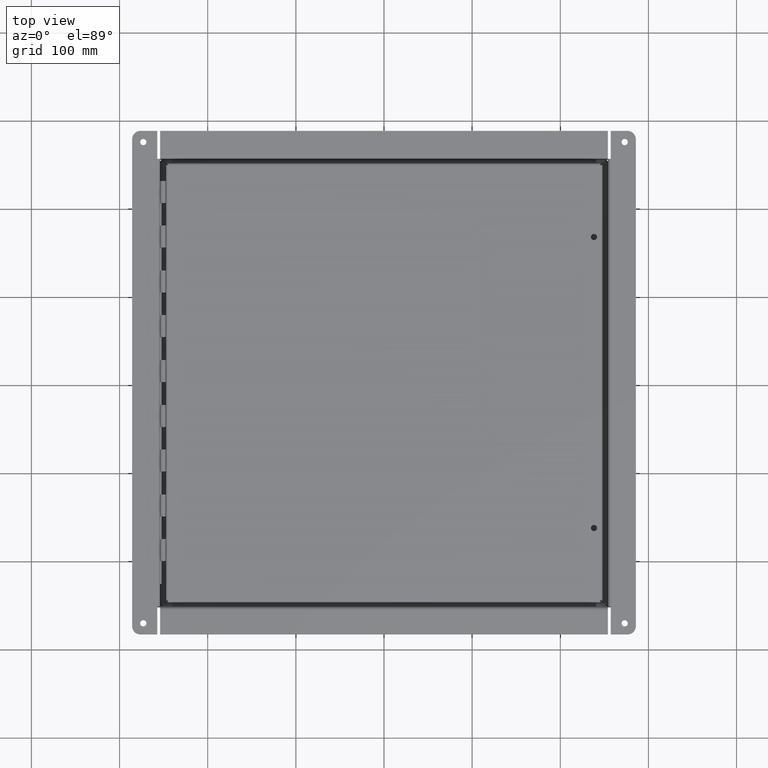
[diagram: clean part render]
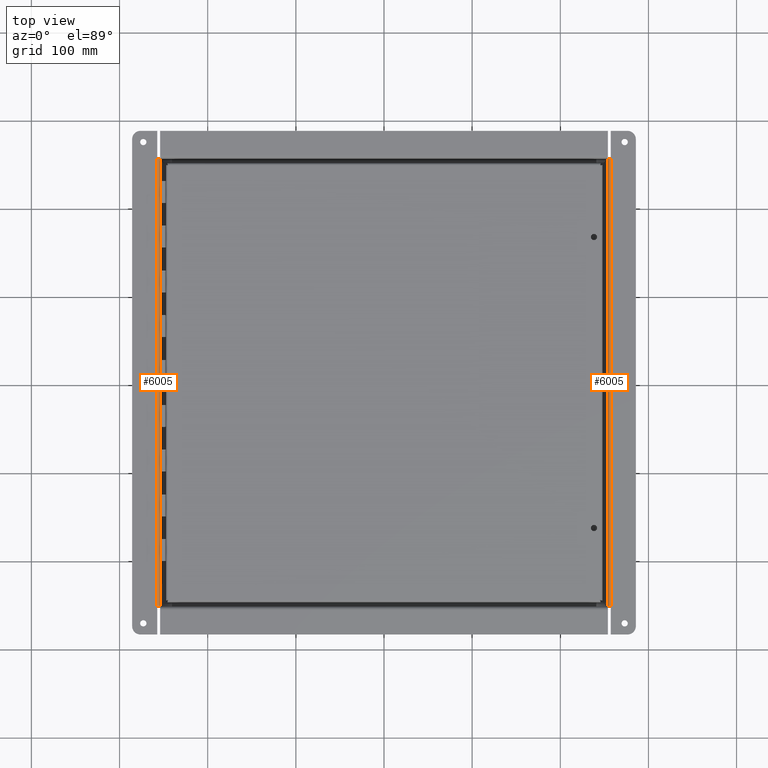
[diagram: same view with one multi-face feature highlighted, each face labeled with its STEP entity id]
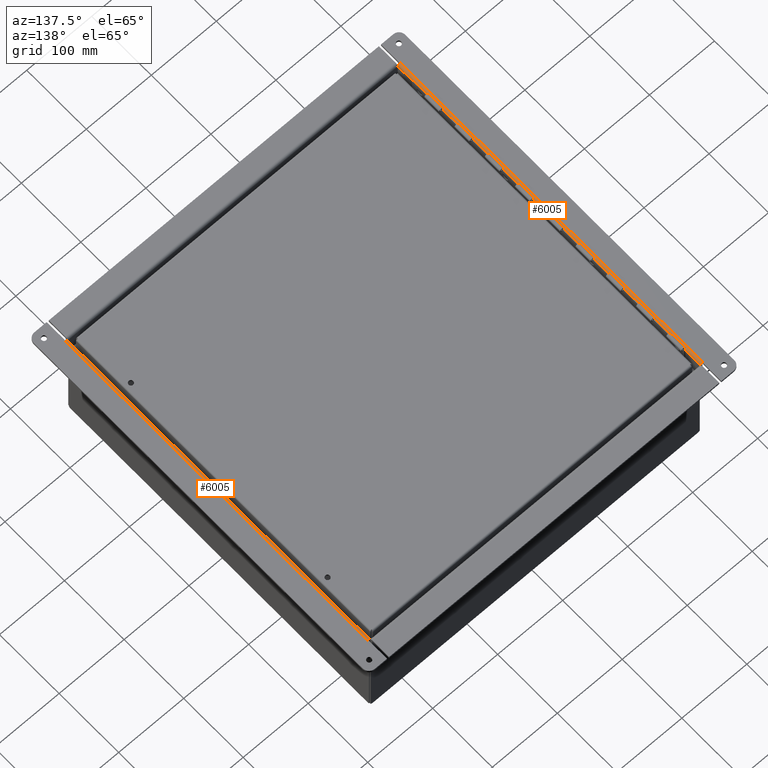
[diagram: same view with one multi-face feature highlighted, each face labeled with its STEP entity id]
A machine part, top view. The highlighted faces form ONE feature: a constant-radius fillet chain: 2 tangent blend faces with common blend radius 3.9688 mm. The faces share edges in the B-rep.
A second angle (auxiliary view) of the same feature is appended — it is thin or edge-on in the first view.
Their STEP definitions:
[1] entity #6005 (Cylinder):
#256=CIRCLE($,#6472,0.15625);
#257=CIRCLE($,#6473,0.15625);
#899=FACE_OUTER_BOUND($,#1295,.T.);
#1295=EDGE_LOOP($,(#5035,#5036,#5037,#5038));
#1840=LINE($,#10728,#2388);
#1859=LINE($,#10774,#2407);
#2388=VECTOR($,#7824,20.);
#2407=VECTOR($,#7861,20.);
#2857=VERTEX_POINT($,#10725);
#2858=VERTEX_POINT($,#10727);
#2875=VERTEX_POINT($,#10772);
#2876=VERTEX_POINT($,#10773);
#3585=EDGE_CURVE($,#2857,#2858,#1840,.T.);
#3607=EDGE_CURVE($,#2875,#2876,#1859,.T.);
#3608=EDGE_CURVE($,#2858,#2875,#256,.T.);
#3609=EDGE_CURVE($,#2876,#2857,#257,.T.);
#5035=ORIENTED_EDGE($,*,*,#3607,.F.);
#5036=ORIENTED_EDGE($,*,*,#3608,.F.);
#5037=ORIENTED_EDGE($,*,*,#3585,.F.);
#5038=ORIENTED_EDGE($,*,*,#3609,.F.);
#5347=CYLINDRICAL_SURFACE($,#6471,0.15625);
#6005=ADVANCED_FACE($,(#899),#5347,.T.);
#6471=AXIS2_PLACEMENT_3D($,#10771,#7859,#7860);
#6472=AXIS2_PLACEMENT_3D($,#10775,#7862,#7863);
#6473=AXIS2_PLACEMENT_3D($,#10776,#7864,#7865);
#7824=DIRECTION($,(1.83580185174239E-016,-1.,0.));
#7859=DIRECTION('center_axis',(1.82608861443158E-016,-1.,0.));
#7860=DIRECTION('ref_axis',(0.,0.,1.));
#7861=DIRECTION($,(-1.82739653533743E-016,1.,8.0087057544389E-036));
#7862=DIRECTION('center_axis',(1.82608861443158E-016,-1.,0.));
#7863=DIRECTION('ref_axis',(6.37810014776783E-014,0.,1.));
#7864=DIRECTION('center_axis',(-1.82608861443158E-016,1.,0.));
#7865=DIRECTION('ref_axis',(-1.,0.,6.99353086378052E-017));
#10725=CARTESIAN_POINT('',(-0.531250000000003,9.99999999999999,0.125));
#10727=CARTESIAN_POINT('',(-0.531249999999999,-10.,0.125));
#10728=CARTESIAN_POINT($,(-0.531250000000002,4.99999999999999,0.125));
#10771=CARTESIAN_POINT('Origin',(-0.531250000000003,0.,-0.03125));
#10772=CARTESIAN_POINT('',(-0.687500000000001,-10.,-0.03125));
#10773=CARTESIAN_POINT('',(-0.687500000000004,10.,-0.03125));
#10774=CARTESIAN_POINT($,(-0.687500000000003,3.71366222161202E-016,-0.0312499999999999));
#10775=CARTESIAN_POINT('Origin',(-0.531250000000001,-10.,-0.03125));
#10776=CARTESIAN_POINT('Origin',(-0.531250000000005,10.,-0.03125));
[2] entity #6005 (Cylinder):
#256=CIRCLE($,#6472,0.15625);
#257=CIRCLE($,#6473,0.15625);
#899=FACE_OUTER_BOUND($,#1295,.T.);
#1295=EDGE_LOOP($,(#5035,#5036,#5037,#5038));
#1840=LINE($,#10728,#2388);
#1859=LINE($,#10774,#2407);
#2388=VECTOR($,#7824,20.);
#2407=VECTOR($,#7861,20.);
#2857=VERTEX_POINT($,#10725);
#2858=VERTEX_POINT($,#10727);
#2875=VERTEX_POINT($,#10772);
#2876=VERTEX_POINT($,#10773);
#3585=EDGE_CURVE($,#2857,#2858,#1840,.T.);
#3607=EDGE_CURVE($,#2875,#2876,#1859,.T.);
#3608=EDGE_CURVE($,#2858,#2875,#256,.T.);
#3609=EDGE_CURVE($,#2876,#2857,#257,.T.);
#5035=ORIENTED_EDGE($,*,*,#3607,.F.);
#5036=ORIENTED_EDGE($,*,*,#3608,.F.);
#5037=ORIENTED_EDGE($,*,*,#3585,.F.);
#5038=ORIENTED_EDGE($,*,*,#3609,.F.);
#5347=CYLINDRICAL_SURFACE($,#6471,0.15625);
#6005=ADVANCED_FACE($,(#899),#5347,.T.);
#6471=AXIS2_PLACEMENT_3D($,#10771,#7859,#7860);
#6472=AXIS2_PLACEMENT_3D($,#10775,#7862,#7863);
#6473=AXIS2_PLACEMENT_3D($,#10776,#7864,#7865);
#7824=DIRECTION($,(1.83580185174239E-016,-1.,0.));
#7859=DIRECTION('center_axis',(1.82608861443158E-016,-1.,0.));
#7860=DIRECTION('ref_axis',(0.,0.,1.));
#7861=DIRECTION($,(-1.82739653533743E-016,1.,8.0087057544389E-036));
#7862=DIRECTION('center_axis',(1.82608861443158E-016,-1.,0.));
#7863=DIRECTION('ref_axis',(6.37810014776783E-014,0.,1.));
#7864=DIRECTION('center_axis',(-1.82608861443158E-016,1.,0.));
#7865=DIRECTION('ref_axis',(-1.,0.,6.99353086378052E-017));
#10725=CARTESIAN_POINT('',(-0.531250000000003,9.99999999999999,0.125));
#10727=CARTESIAN_POINT('',(-0.531249999999999,-10.,0.125));
#10728=CARTESIAN_POINT($,(-0.531250000000002,4.99999999999999,0.125));
#10771=CARTESIAN_POINT('Origin',(-0.531250000000003,0.,-0.03125));
#10772=CARTESIAN_POINT('',(-0.687500000000001,-10.,-0.03125));
#10773=CARTESIAN_POINT('',(-0.687500000000004,10.,-0.03125));
#10774=CARTESIAN_POINT($,(-0.687500000000003,3.71366222161202E-016,-0.0312499999999999));
#10775=CARTESIAN_POINT('Origin',(-0.531250000000001,-10.,-0.03125));
#10776=CARTESIAN_POINT('Origin',(-0.531250000000005,10.,-0.03125));